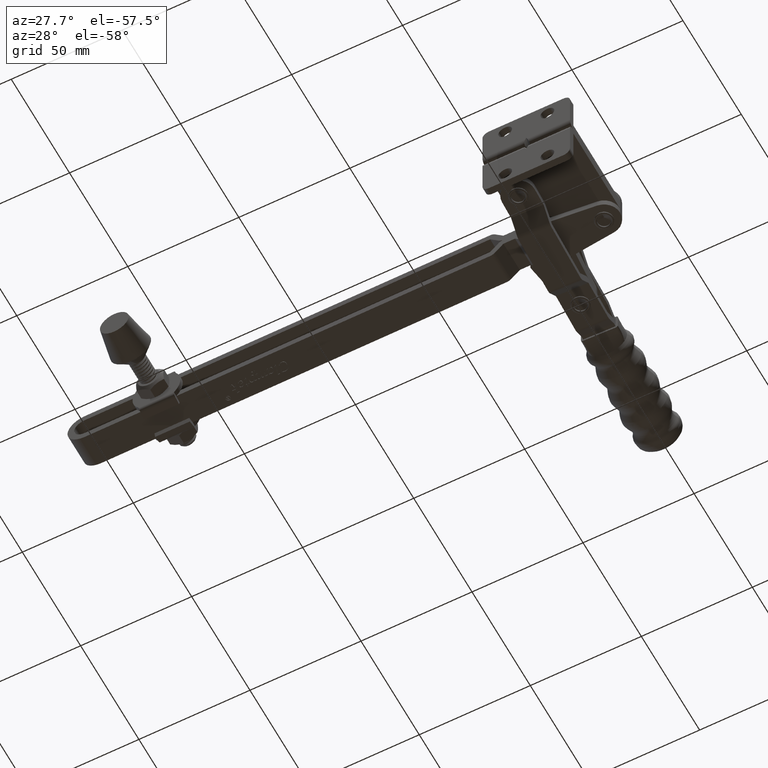
[diagram: clean part render]
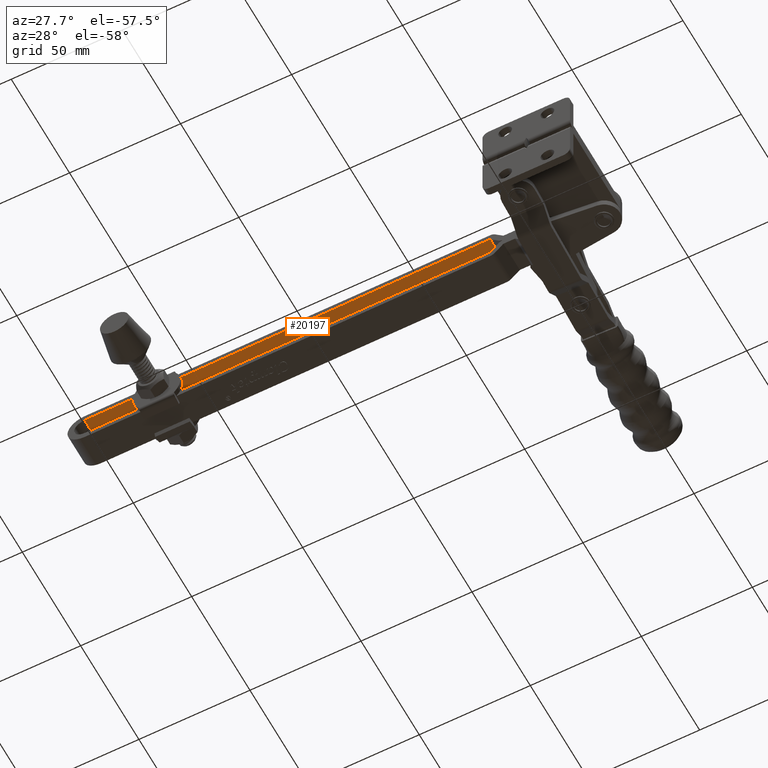
[diagram: same view with one face highlighted and labeled with its STEP entity id]
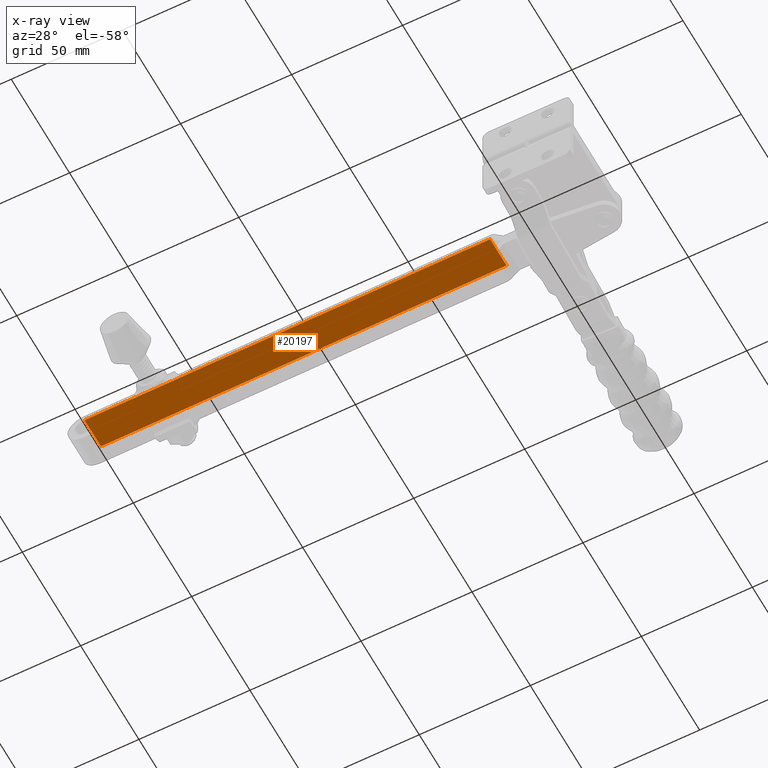
[diagram: x-ray of the same camera — body ghosted, the highlighted face saturated]
A machine part, auxiliary view. The second image highlights one B-rep face of the part: STEP entity #20197.
The next image is the same camera in x-ray: the body ghosted, the highlighted face saturated — about 0% of this face is hidden behind the body in this view.
In plain terms, the highlighted planar face has unit normal (0, -0, 1).
Its self-contained STEP definition (entity closure, byte-faithful):
#20196 = ORIENTED_EDGE ( 'NONE', *, *, #20198, .T. ) ;
#20197 = ADVANCED_FACE ( 'NONE', ( #35786 ), #35831, .F. ) ;
#20198 = EDGE_CURVE ( 'NONE', #20222, #20217, #35830, .T. ) ;
#20199 = ORIENTED_EDGE ( 'NONE', *, *, #20213, .T. ) ;
#20200 = ORIENTED_EDGE ( 'NONE', *, *, #20203, .T. ) ;
#20201 = ORIENTED_EDGE ( 'NONE', *, *, #20202, .F. ) ;
#20202 = EDGE_CURVE ( 'NONE', #20216, #20217, #35825, .T. ) ;
#20203 = EDGE_CURVE ( 'NONE', #20216, #20221, #35817, .T. ) ;
#20207 = EDGE_LOOP ( 'NONE', ( #20199, #20196, #20201, #20200 ) ) ;
#20213 = EDGE_CURVE ( 'NONE', #20221, #20222, #35806, .T. ) ;
#20216 = VERTEX_POINT ( 'NONE', #35858 ) ;
#20217 = VERTEX_POINT ( 'NONE', #35854 ) ;
#20221 = VERTEX_POINT ( 'NONE', #35841 ) ;
#20222 = VERTEX_POINT ( 'NONE', #35860 ) ;
#35776 = AXIS2_PLACEMENT_3D ( 'NONE', #35789, #35827, #35826 ) ;
#35786 = FACE_OUTER_BOUND ( 'NONE', #20207, .T. ) ;
#35789 = CARTESIAN_POINT ( 'NONE',  ( -54.89757656742710200, 1.301503737431141600, 20.00000000000000000 ) ) ;
#35805 = CARTESIAN_POINT ( 'NONE',  ( -54.89757656742710200, 1.301503737431141600, 20.00000000000000000 ) ) ;
#35806 = LINE ( 'NONE', #35805, #35856 ) ;
#35814 = DIRECTION ( 'NONE',  ( 1.000000000000000000, 1.137750684915277500E-016, -1.549720953688073400E-017 ) ) ;
#35815 = VECTOR ( 'NONE', #35814, 1000.000000000000000 ) ;
#35816 = CARTESIAN_POINT ( 'NONE',  ( -54.89757656742710200, 1.301503737431141600, 17.00000000000000000 ) ) ;
#35817 = LINE ( 'NONE', #35816, #35815 ) ;
#35819 = DIRECTION ( 'NONE',  ( -0.0000000000000000000, -0.0000000000000000000, -1.000000000000000000 ) ) ;
#35820 = VECTOR ( 'NONE', #35819, 1000.000000000000000 ) ;
#35823 = DIRECTION ( 'NONE',  ( -1.000000000000000000, -1.137750684915277500E-016, 5.811453576330275000E-018 ) ) ;
#35824 = CARTESIAN_POINT ( 'NONE',  ( -237.8610499163514800, 1.301503737431115100, 20.00000000000000000 ) ) ;
#35825 = LINE ( 'NONE', #35824, #35820 ) ;
#35826 = DIRECTION ( 'NONE',  ( 1.000000000000000000, 1.137750684915277500E-016, 0.0000000000000000000 ) ) ;
#35827 = DIRECTION ( 'NONE',  ( 1.137750684915277500E-016, -1.000000000000000000, 0.0000000000000000000 ) ) ;
#35828 = VECTOR ( 'NONE', #35823, 1000.000000000000000 ) ;
#35829 = CARTESIAN_POINT ( 'NONE',  ( -54.89757656742710200, 1.301503737431141600, 2.999999999999999100 ) ) ;
#35830 = LINE ( 'NONE', #35829, #35828 ) ;
#35831 = PLANE ( 'NONE',  #35776 ) ;
#35841 = CARTESIAN_POINT ( 'NONE',  ( -54.89757656742710200, 1.301503737431141600, 17.00000000000000000 ) ) ;
#35854 = CARTESIAN_POINT ( 'NONE',  ( -237.8610499163514800, 1.301503737431115100, 2.999999999999999100 ) ) ;
#35855 = DIRECTION ( 'NONE',  ( -0.0000000000000000000, -0.0000000000000000000, -1.000000000000000000 ) ) ;
#35856 = VECTOR ( 'NONE', #35855, 1000.000000000000000 ) ;
#35858 = CARTESIAN_POINT ( 'NONE',  ( -237.8610499163514800, 1.301503737431115100, 17.00000000000000400 ) ) ;
#35860 = CARTESIAN_POINT ( 'NONE',  ( -54.89757656742710200, 1.301503737431141600, 2.999999999999999100 ) ) ;